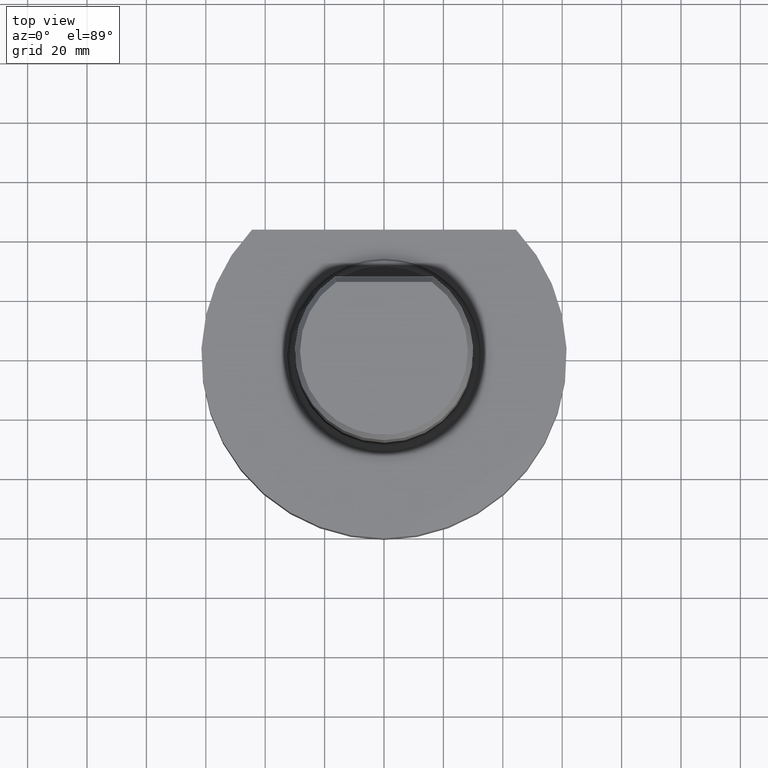
[diagram: clean part render]
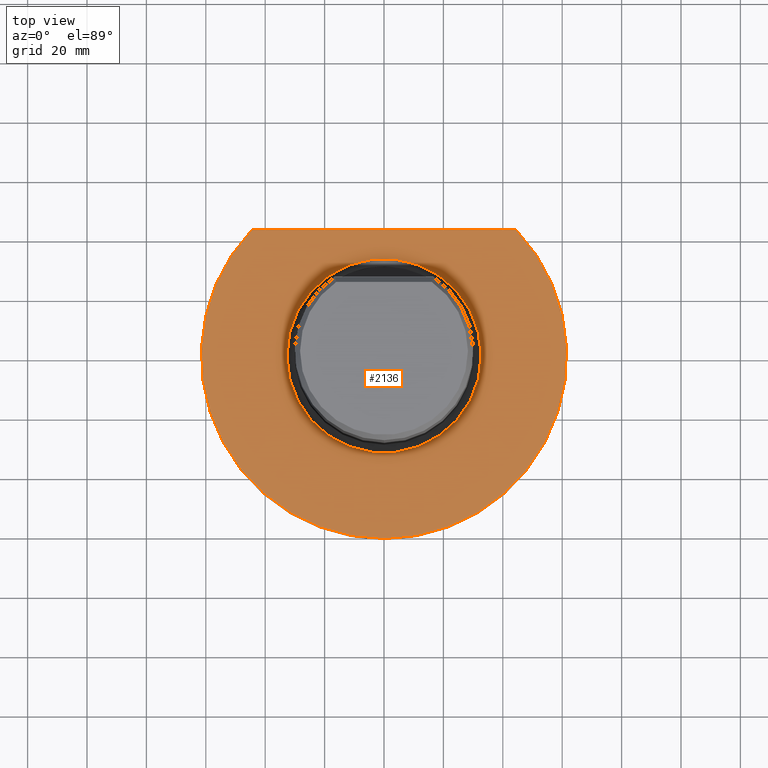
[diagram: same view with one face highlighted and labeled with its STEP entity id]
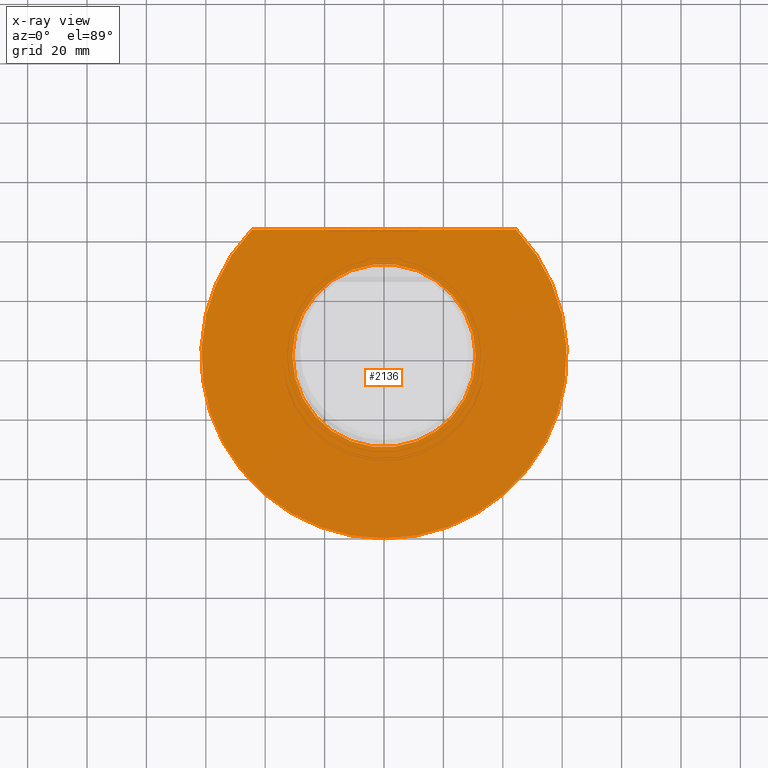
[diagram: x-ray of the same camera — body ghosted, the highlighted face saturated]
A machine part, top view. The second image highlights one B-rep face of the part: STEP entity #2136.
The next image is the same camera in x-ray: the body ghosted, the highlighted face saturated — about 0% of this face is hidden behind the body in this view.
In plain terms, the highlighted planar face has unit normal (0, 0, 1).
Its self-contained STEP definition (entity closure, byte-faithful):
#49 = DIRECTION ( 'NONE',  ( 1.000000000000000000, 0.000000000000000000, -2.220446049250309876E-16 ) ) ;
#868 = VERTEX_POINT ( 'NONE', #7914 ) ;
#1364 = DIRECTION ( 'NONE',  ( -1.000000000000000000, 4.440892098500630106E-16, 2.220446049250309876E-16 ) ) ;
#2004 = EDGE_LOOP ( 'NONE', ( #5866, #5639 ) ) ;
#2105 = CARTESIAN_POINT ( 'NONE',  ( -1.019723305085170008E-30, -4.528481168209670201E-46, -4.592425496802569633E-15 ) ) ;
#2136 = ADVANCED_FACE ( 'Defeature completata1_59', ( #7778, #6880 ), #11173, .T. ) ;
#3555 = DIRECTION ( 'NONE',  ( 2.220446049250309876E-16, -3.061616999900339566E-17, 1.000000000000000000 ) ) ;
#3615 = AXIS2_PLACEMENT_3D ( 'NONE', #10339, #14796, #49 ) ;
#4937 = LINE ( 'NONE', #11452, #12237 ) ;
#5639 = ORIENTED_EDGE ( 'NONE', *, *, #7820, .T. ) ;
#5778 = CARTESIAN_POINT ( 'NONE',  ( 44.45222154178579643, 42.50000000000000000, -9.870375970285788529E-15 ) ) ;
#5866 = ORIENTED_EDGE ( 'NONE', *, *, #12560, .T. ) ;
#6048 = DIRECTION ( 'NONE',  ( 1.000000000000000000, 0.000000000000000000, -2.220446049250309876E-16 ) ) ;
#6104 = EDGE_CURVE ( 'NONE', #868, #868, #14876, .T. ) ;
#6880 = FACE_OUTER_BOUND ( 'NONE', #2004, .T. ) ;
#7204 = CIRCLE ( 'NONE', #8864, 61.50000000000000000 ) ;
#7778 = FACE_BOUND ( 'NONE', #9274, .T. ) ;
#7820 = EDGE_CURVE ( 'NONE', #13156, #8299, #7204, .T. ) ;
#7914 = CARTESIAN_POINT ( 'NONE',  ( 30.84839211849060092, -5.357829749825450797E-17, -1.156816689517960564E-14 ) ) ;
#8299 = VERTEX_POINT ( 'NONE', #5778 ) ;
#8361 = CARTESIAN_POINT ( 'NONE',  ( -9.244463733058730343E-31, -5.357829749825450797E-17, -4.718447854656920030E-15 ) ) ;
#8825 = AXIS2_PLACEMENT_3D ( 'NONE', #8361, #3555, #6048 ) ;
#8864 = AXIS2_PLACEMENT_3D ( 'NONE', #2105, #13611, #9093 ) ;
#9093 = DIRECTION ( 'NONE',  ( -1.000000000000000000, 4.440892098500630106E-16, 2.220446049250310123E-16 ) ) ;
#9274 = EDGE_LOOP ( 'NONE', ( #11369 ) ) ;
#10339 = CARTESIAN_POINT ( 'NONE',  ( -1.019723305085170008E-30, -4.528481168209670201E-46, -4.592425496802569633E-15 ) ) ;
#11173 = PLANE ( 'NONE',  #3615 ) ;
#11338 = CARTESIAN_POINT ( 'NONE',  ( -44.45222154178569696, 42.50000000000000000, 9.870375970285779062E-15 ) ) ;
#11369 = ORIENTED_EDGE ( 'NONE', *, *, #6104, .F. ) ;
#11452 = CARTESIAN_POINT ( 'NONE',  ( 1.887379141862769905E-14, 42.50000000000000000, -8.881784197001260212E-15 ) ) ;
#12237 = VECTOR ( 'NONE', #1364, 1000.000000000000000 ) ;
#12560 = EDGE_CURVE ( 'NONE', #8299, #13156, #4937, .T. ) ;
#13156 = VERTEX_POINT ( 'NONE', #11338 ) ;
#13611 = DIRECTION ( 'NONE',  ( 2.220446049250309876E-16, 9.860761315262649757E-32, 1.000000000000000000 ) ) ;
#14796 = DIRECTION ( 'NONE',  ( 2.220446049250309876E-16, 9.860761315262649757E-32, 1.000000000000000000 ) ) ;
#14876 = CIRCLE ( 'NONE', #8825, 30.84839211849060092 ) ;